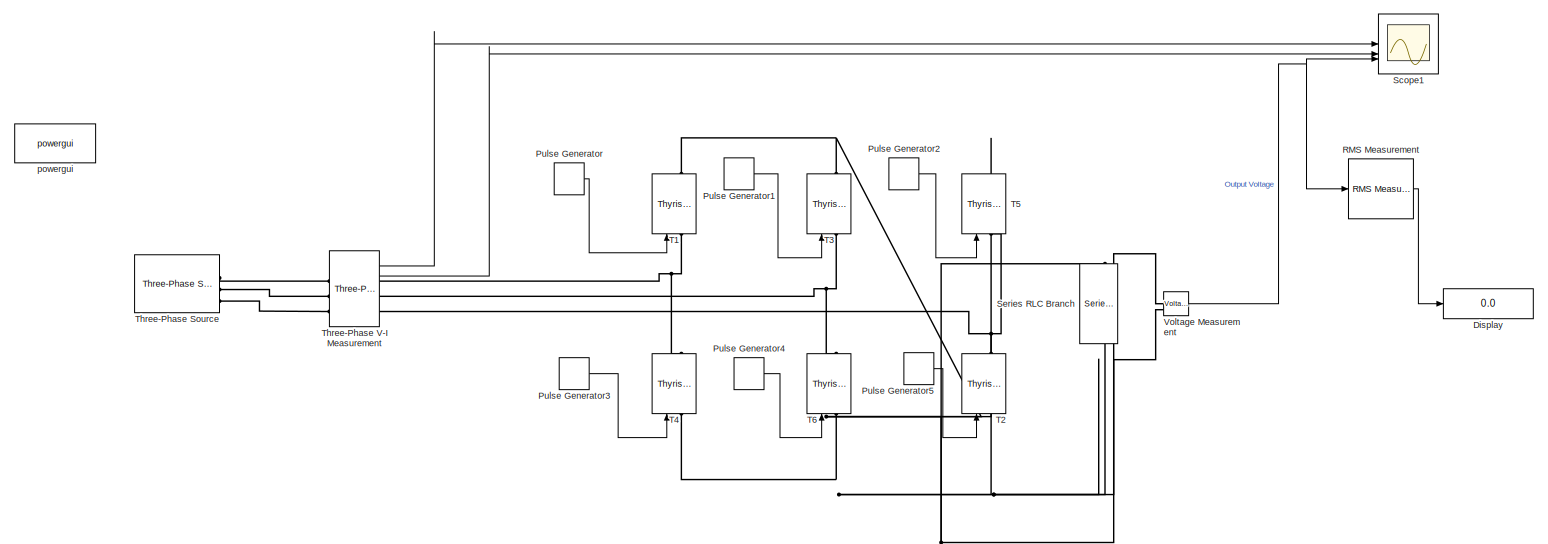
[diagram: root canvas - part 1/1, most of the canvas]
MODEL slx_53470cd12b3d
KIND model
CONFIG AbsTol = auto
CONFIG EnableMultiTasking = off
CONFIG FixedStep = auto
CONFIG MaxStep = auto
CONFIG MinStep = auto
CONFIG RelTol = 1e-3
CONFIG SampleTimeConstraint = Unconstrained
CONFIG SolverName = VariableStepAuto
CONFIG StartTime = 0.0
CONFIG StopTime = 0.2
BLOCK [Display] Display
  Decimation = 1
BLOCK [DiscretePulseGenerator] Pulse Generator
  Period = 0.02
  PhaseDelay = a*(0.02/360)
  PulseType = Time based
  PulseWidth = 10
BLOCK [DiscretePulseGenerator] Pulse Generator1
  Period = 0.02
  PhaseDelay = (a+180)*(0.02/360)
  PulseType = Time based
  PulseWidth = 10
BLOCK [DiscretePulseGenerator] Pulse Generator2
  Period = 0.02
  PhaseDelay = (a+300)*(0.02/360)
  PulseType = Time based
  PulseWidth = 10
BLOCK [DiscretePulseGenerator] Pulse Generator3
  Period = 0.02
  PhaseDelay = (a+240)*(0.02/360)
  PulseType = Time based
  PulseWidth = 10
BLOCK [DiscretePulseGenerator] Pulse Generator4
  Period = 0.02
  PhaseDelay = (a+360)*(0.02/360)
  PulseType = Time based
  PulseWidth = 10
BLOCK [DiscretePulseGenerator] Pulse Generator5
  Period = 0.02
  PhaseDelay = (a+60)*(0.02/360)
  PulseType = Time based
  PulseWidth = 10
BLOCK [Reference] RMS Measurement  REF=eeRmsMeasurement/RMS
Measurement
  LibrarySourceBlock = ee_sl_lib/Measurements/RMS\nMeasurement
  SourceBlock = eeRmsMeasurement/RMS\nMeasurement
  SourceType = RMS Measurement
BLOCK [Scope] Scope1
  Floating = off
  NumInputPorts = 3
  ScopeSpecificationString = Simulink.scopes.TimeScopeBlockCfg('CurrentConfiguration', extmgr.ConfigurationSet(extmgr.Configuration('Core','General UI',true),extmgr.Configuration('Core','Source UI',true),extmgr.Configuration('Sources','WiredSimulink',true,'DataLoggingVariableName','ScopeData1'),extmgr.Configuration('Visuals','Time Domain',true,'SerializedDisplays',{struct('MinYLimReal','-430.26023','MaxYLimReal','592.25124','...<+2085ch>
BLOCK [Reference] Series RLC Branch  REF=spsSeriesRLCBranchLib/Series RLC Branch
  LibrarySourceBlock = sps_lib/Passives/Series RLC Branch
  NameLocation = left
  SourceBlock = spsSeriesRLCBranchLib/Series RLC Branch
  SourceType = Series RLC Branch
BLOCK [Reference] T1  REF=spsThyristorLib/Thyristor
  LibrarySourceBlock = sps_lib/Power Electronics/Thyristor
  NameLocation = right
  SourceBlock = spsThyristorLib/Thyristor
  SourceType = Thyristor
BLOCK [Reference] T2  REF=spsThyristorLib/Thyristor
  LibrarySourceBlock = sps_lib/Power Electronics/Thyristor
  NameLocation = right
  SourceBlock = spsThyristorLib/Thyristor
  SourceType = Thyristor
BLOCK [Reference] T3  REF=spsThyristorLib/Thyristor
  LibrarySourceBlock = sps_lib/Power Electronics/Thyristor
  NameLocation = right
  SourceBlock = spsThyristorLib/Thyristor
  SourceType = Thyristor
BLOCK [Reference] T4  REF=spsThyristorLib/Thyristor
  LibrarySourceBlock = sps_lib/Power Electronics/Thyristor
  NameLocation = right
  SourceBlock = spsThyristorLib/Thyristor
  SourceType = Thyristor
BLOCK [Reference] T5  REF=spsThyristorLib/Thyristor
  LibrarySourceBlock = sps_lib/Power Electronics/Thyristor
  NameLocation = right
  SourceBlock = spsThyristorLib/Thyristor
  SourceType = Thyristor
BLOCK [Reference] T6  REF=spsThyristorLib/Thyristor
  LibrarySourceBlock = sps_lib/Power Electronics/Thyristor
  NameLocation = right
  SourceBlock = spsThyristorLib/Thyristor
  SourceType = Thyristor
BLOCK [Reference] Three-Phase Source  REF=spsThreePhaseSourceLib/Three-Phase Source
  LibrarySourceBlock = sps_lib/Sources/Three-Phase Source
  SourceBlock = spsThreePhaseSourceLib/Three-Phase Source
  SourceType = Three-Phase Source
BLOCK [Reference] Three-Phase V-I Measurement  REF=spsThreePhaseVIMeasurementLib/Three-Phase
V-I Measurement
  LibrarySourceBlock = sps_lib/Sensors and Measurements/Three-Phase\nV-I Measurement
  SourceBlock = spsThreePhaseVIMeasurementLib/Three-Phase\nV-I Measurement
  SourceType = Three-Phase VI Measurement
BLOCK [Reference] Voltage Measurement  REF=spsVoltageMeasurementLib/Voltage Measurement
  LibrarySourceBlock = sps_lib/Sensors and Measurements/Voltage Measurement
  SourceBlock = spsVoltageMeasurementLib/Voltage Measurement
  SourceType = Voltage Measurement
  UserDataPersistent = on
BLOCK [Reference] powergui  REF=sps_lib/powergui
  LibrarySourceBlock = sps_lib/powergui
  Priority = 1
  SourceBlock = sps_lib/powergui
  SourceType = PSB option menu block
LINE Pulse Generator1:1 -> T3:1
LINE Pulse Generator2:1 -> T5:1
LINE Pulse Generator3:1 -> T4:1
LINE Pulse Generator4:1 -> T6:1
LINE Pulse Generator5:1 -> T2:1
LINE Pulse Generator:1 -> T1:1
LINE RMS Measurement:1 -> Display:1
LINE Three-Phase V-I Measurement:1 -> Scope1:1
LINE Three-Phase V-I Measurement:2 -> Scope1:2
NET Voltage Measurement:1 -> RMS Measurement:1, Scope1:3
PNET net1: Series RLC Branch:LConn1 -- T1:RConn1 -- T3:RConn1 -- T5:RConn1 -- Voltage Measurement:LConn1
PNET net2: Series RLC Branch:RConn1 -- T2:LConn1 -- T4:LConn1 -- T6:LConn1 -- Voltage Measurement:LConn2
PNET net3: T1:LConn1 -- T4:RConn1 -- Three-Phase V-I Measurement:RConn1
PNET net4: T2:RConn1 -- T5:LConn1 -- Three-Phase V-I Measurement:RConn3
PNET net5: T3:LConn1 -- T6:RConn1 -- Three-Phase V-I Measurement:RConn2
PLINE Three-Phase Source:RConn1 -- Three-Phase V-I Measurement:LConn1
PLINE Three-Phase Source:RConn2 -- Three-Phase V-I Measurement:LConn2
PLINE Three-Phase Source:RConn3 -- Three-Phase V-I Measurement:LConn3
note: NET lines group one-source signal fan-out (src -> all destinations, sorted); 1:1 wires keep LINE; PNET lines group multi-terminal physical nets as a canonical sorted terminal list (undirected conserving connections); 2-terminal nets keep the pairwise PLINE form
